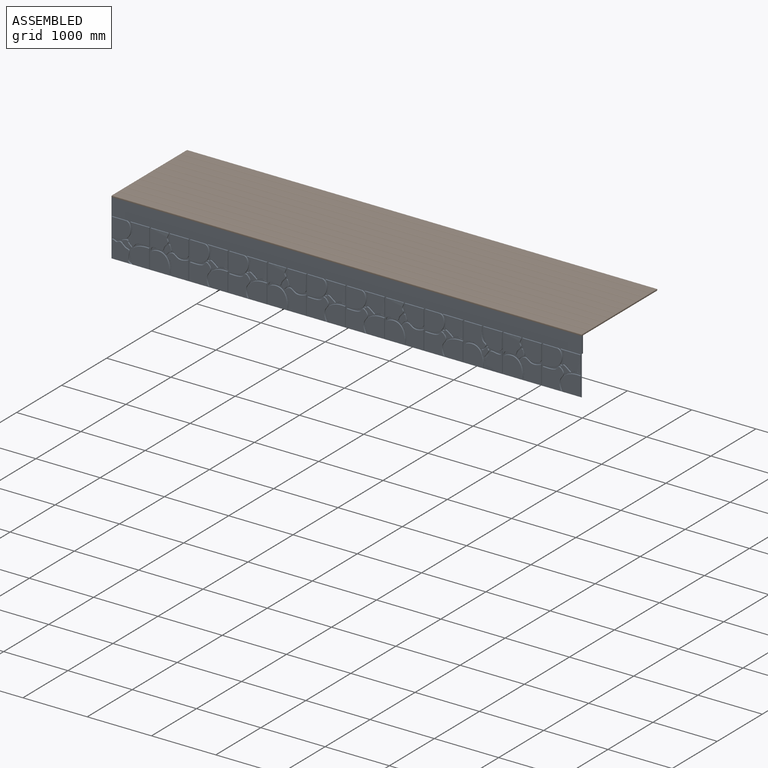
[diagram: assembled view]
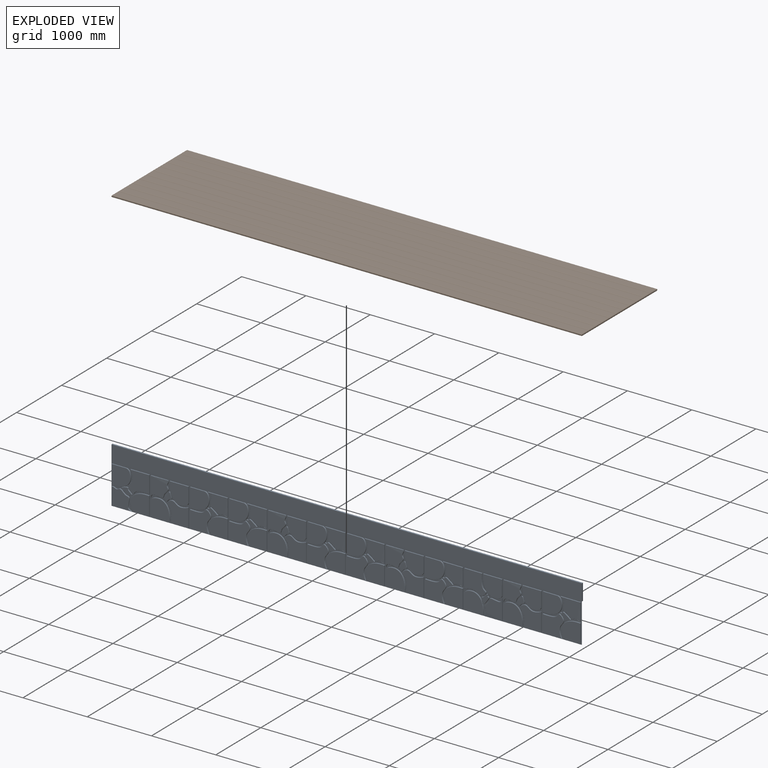
[diagram: exploded view]
GUIDED TOUR — MATED ASSEMBLY WITH SUBASSEMBLIES (Onshape document 3dcd6eb83dcc1490669a34c6, AutoMate assembly 3dcd6eb83dcc1490669a34c6_368724a0698504fedb2d7446_d10040594b9659fdce17934c_default)

This assembly has 24 component occurrences arranged in 2 top-level units: 0 individual components plus 2 subassemblies (S0, S1). The tour has two levels: first the top level, where each subassembly is treated as one rigid unit; then each subassembly is toured internally in its own section (nesting deeper than one subassembly level is flattened into its subassembly's section).

Components are labeled P0..P23 across the whole record; subassembly units are labeled S0..S1. A mate is a constraint between two units; its type names the relative motion it leaves free:
  PLANAR — leaves sliding in the plane through the listed point (normal = the listed direction) and rotation about that normal free.
Axis/direction vectors are unit vectors and 'through' points are millimeter coordinates, both in the assembly's world frame.

TOP-LEVEL MATES (between units; each subassembly's internal mates are listed in its own section)
  1. PLANAR "Planar 1": S1 <-> S0, direction (0.000, 0.000, -1.000) through (-256.21, -809.91, 1233.63) mm

TOP-LEVEL ASSEMBLY ORDER
  1. S1 — the base component [order verified]
  2. S0 [order verified]
Order-tag legend:
  [order verified] — this step's position reverses a verified removal order: the component was checked to insert without passing through the ones already placed.

Of the 24 component occurrences, 12 carry the full construction recipe — the FeatureScript program that regenerates the part's solid from scratch; the rest are supplied as boundary geometry only. Each toured unit is shown spotlighted twice — assembled, then exploded with a leader line back to its socket (green = recipe-attached component, orange = geometry-only, blue = subassembly unit; the rest desaturated gray).
NOTE — document 2 of 2 of this assembly tour. The two overview renders and the header above are repeated from document 1; the component sections below continue where the previous document stopped.
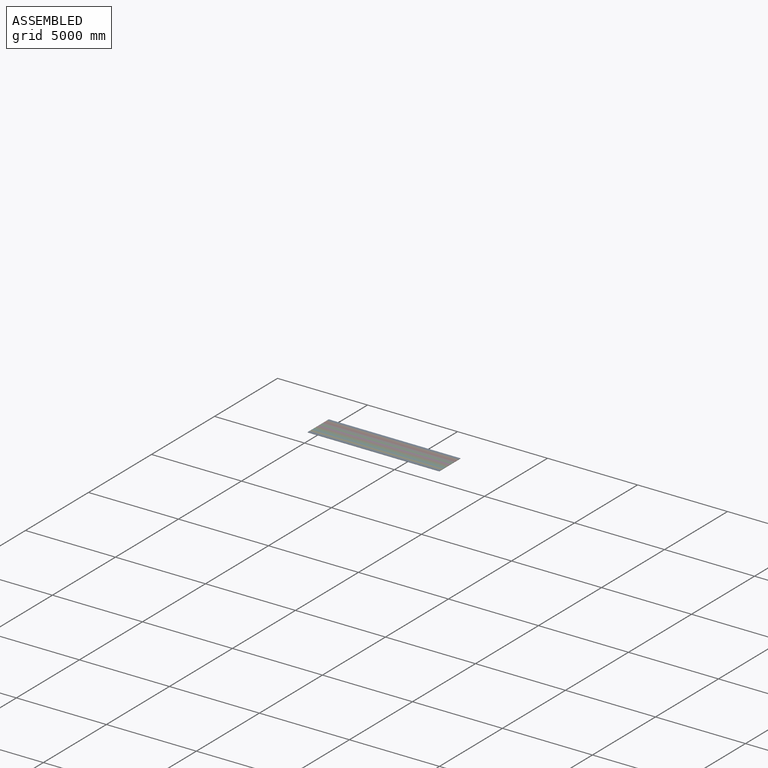
[diagram: subassembly S1 — assembled view]
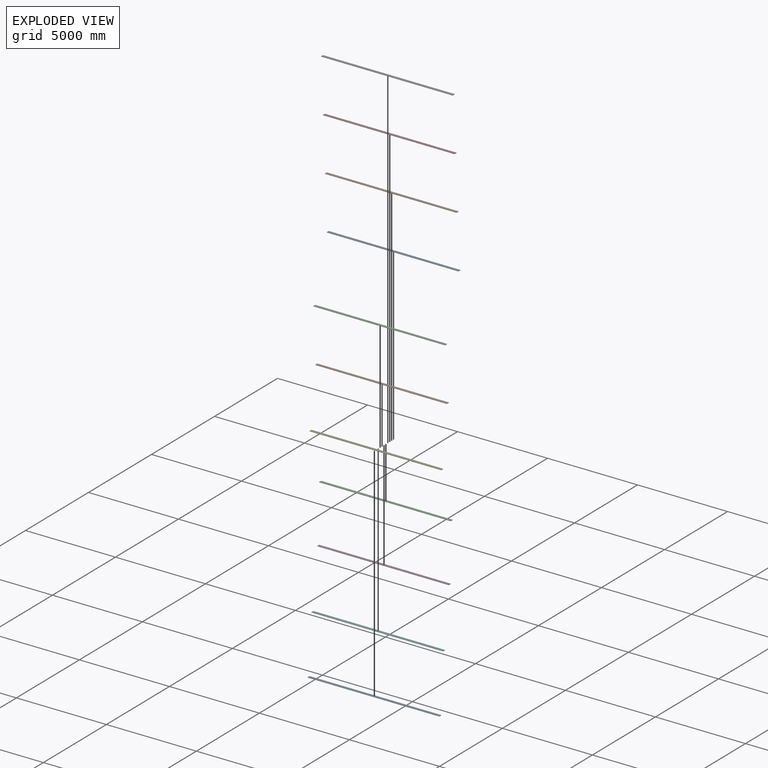
[diagram: subassembly S1 — exploded view]
SUBASSEMBLY S1 TOUR — 11 components, shown here in isolation at its own camera.

INTERNAL MATES
  1. PLANAR "Planar 11": P10 <-> P11, direction (0.000, 0.000, -1.000) through (-256.29, -505.11, 1233.63) mm
  2. PLANAR "Planar 8": P3 <-> P5, direction (0.000, 0.000, -1.000) through (-256.41, -47.91, 1233.63) mm
  3. PLANAR "Planar 10": P11 <-> P22, direction (0.000, 0.000, -1.000) through (-256.33, -352.71, 1233.63) mm
  4. PLANAR "Planar 9": P22 <-> P3, direction (0.000, 0.000, -1.000) through (-256.37, -200.31, 1233.63) mm
  5. PLANAR "Planar 6": P4 <-> P14, direction (0.000, 0.000, -1.000) through (-256.48, 256.89, 1233.63) mm
  6. PLANAR "Planar 12": P2 <-> P10, direction (0.000, 0.000, -1.000) through (-256.25, -657.51, 1233.63) mm
  7. PLANAR "Planar 4": P15 <-> P21, direction (0.000, 0.000, -1.000) through (-256.56, 561.69, 1233.63) mm
  8. PLANAR "Planar 3": P21 <-> P16, direction (0.000, 0.000, -1.000) through (-256.60, 714.09, 1233.63) mm
  9. PLANAR "Planar 5": P14 <-> P15, direction (0.000, 0.000, -1.000) through (-256.52, 409.29, 1233.63) mm
  10. PLANAR "Planar 7": P5 <-> P4, direction (0.000, 0.000, -1.000) through (-256.44, 104.49, 1233.63) mm
  11. PLANAR "Planar 6": P5 <-> P3, direction (0.000, 0.000, -1.000) through (-256.41, -47.91, 1233.63) mm
  12. PLANAR "Planar 8": P14 <-> P4, direction (0.000, 0.000, -1.000) through (-256.48, 256.89, 1233.63) mm
  13. PLANAR "Planar 3": P11 <-> P10, direction (0.000, 0.000, -1.000) through (-256.29, -505.11, 1233.63) mm
  14. PLANAR "Planar 4": P22 <-> P11, direction (0.000, 0.000, -1.000) through (-256.33, -352.71, 1233.63) mm
  15. PLANAR "Planar 5": P3 <-> P22, direction (0.000, 0.000, -1.000) through (-256.37, -200.31, 1233.63) mm
  16. PLANAR "Planar 6": P4 <-> P14, direction (0.000, 0.000, -1.000) through (-256.48, 256.89, 1233.63) mm
  17. PLANAR "Planar 5": P14 <-> P15, direction (0.000, 0.000, -1.000) through (-256.52, 409.29, 1233.63) mm
  18. PLANAR "Planar 9": P15 <-> P14, direction (0.000, 0.000, -1.000) through (-256.52, 409.29, 1233.63) mm
  19. PLANAR "Planar 9": P22 <-> P3, direction (0.000, 0.000, -1.000) through (-256.37, -200.31, 1233.63) mm
  20. PLANAR "Planar 2": P10 <-> P2, direction (0.000, 0.000, -1.000) through (-256.25, -657.51, 1233.63) mm
  21. PLANAR "Planar 11": P10 <-> P11, direction (0.000, 0.000, -1.000) through (-256.29, -505.11, 1233.63) mm
  22. PLANAR "Planar 11": P16 <-> P21, direction (0.000, 0.000, -1.000) through (-256.60, 714.09, 1233.63) mm
  23. PLANAR "Planar 3": P21 <-> P16, direction (0.000, 0.000, -1.000) through (-256.60, 714.09, 1233.63) mm
  24. PLANAR "Planar 7": P4 <-> P5, direction (0.000, 0.000, -1.000) through (-256.44, 104.49, 1233.63) mm
  25. PLANAR "Planar 4": P15 <-> P21, direction (0.000, 0.000, -1.000) through (-256.56, 561.69, 1233.63) mm
  26. PLANAR "Planar 12": P2 <-> P10, direction (0.000, 0.000, -1.000) through (-256.25, -657.51, 1233.63) mm
  27. PLANAR "Planar 7": P5 <-> P4, direction (0.000, 0.000, -1.000) through (-256.44, 104.49, 1233.63) mm
  28. PLANAR "Planar 8": P3 <-> P5, direction (0.000, 0.000, -1.000) through (-256.41, -47.91, 1233.63) mm
  29. PLANAR "Planar 10": P11 <-> P22, direction (0.000, 0.000, -1.000) through (-256.33, -352.71, 1233.63) mm
  30. PLANAR "Planar 10": P21 <-> P15, direction (0.000, 0.000, -1.000) through (-256.56, 561.69, 1233.63) mm

ASSEMBLY ORDER (within the subassembly)
  1. P10 — the base component [order verified]
  2. P4 [order verified]
  3. P5 [order verified]
  4. P3 [order verified]
  5. P11 [order verified]
  6. P22 [order verified]
  7. P2 [order verified]
  8. P16 [order verified]
  9. P21 [order verified]
  10. P15 [order verified]
  11. P14 [order verified]
Order-tag legend:
  [order verified] — this step's position reverses a verified removal order: the component was checked to insert without passing through the ones already placed.
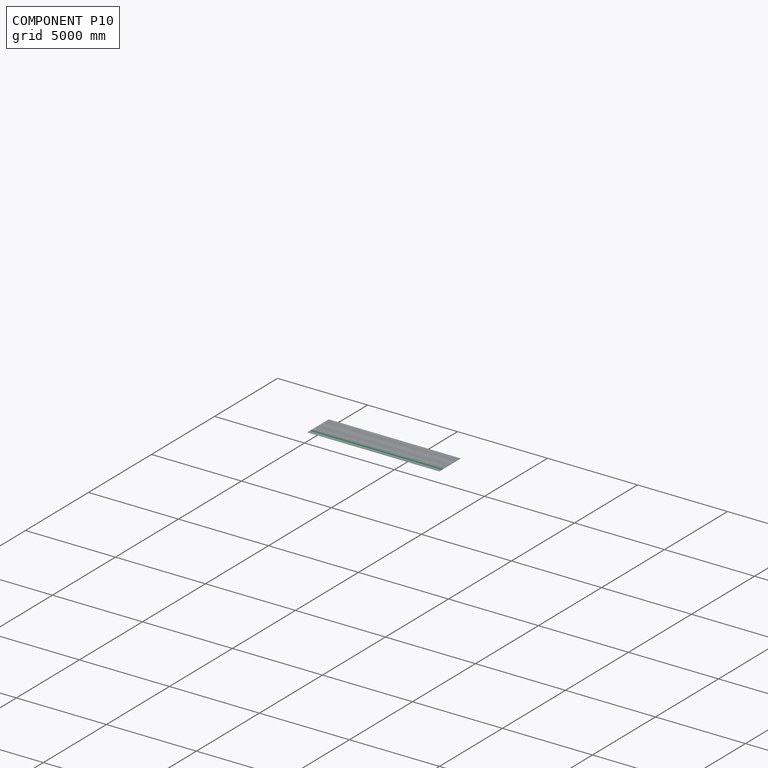
[diagram: component P10 — assembled]
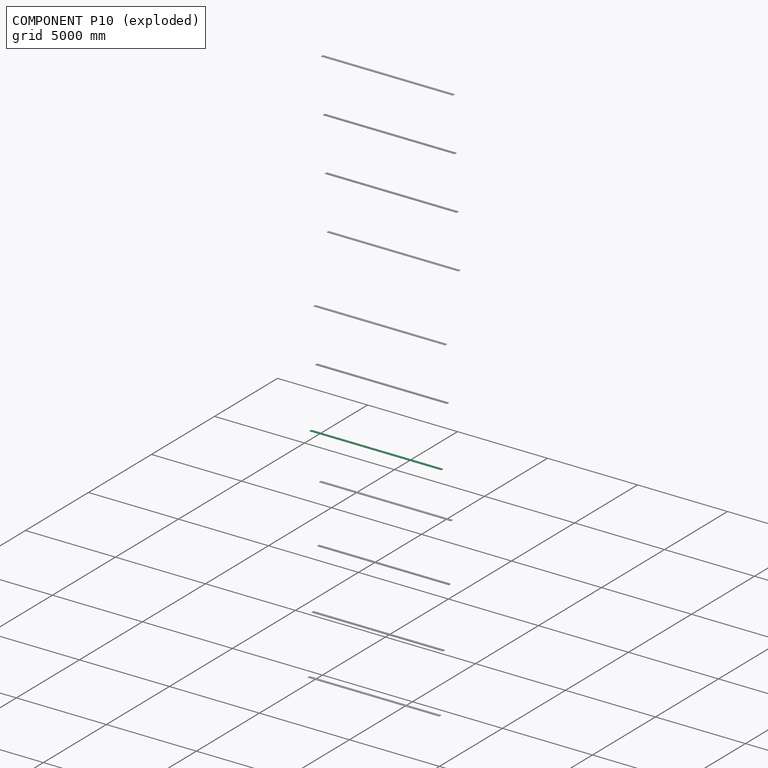
[diagram: component P10 — exploded]
COMPONENT P10 — same part as P2 (CADFS 00405681); its construction recipe is shown at P2.
Held by: PLANAR mate "Planar 11" to P11; PLANAR mate "Planar 12" to P2; PLANAR mate "Planar 3" to P11; PLANAR mate "Planar 2" to P2; PLANAR mate "Planar 11" to P11; PLANAR mate "Planar 12" to P2.
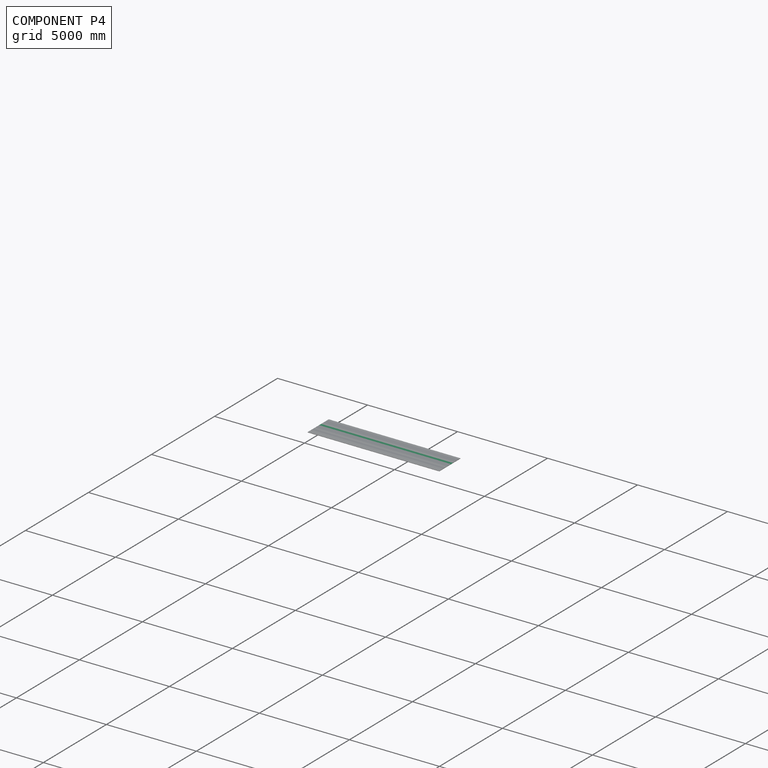
[diagram: component P4 — assembled]
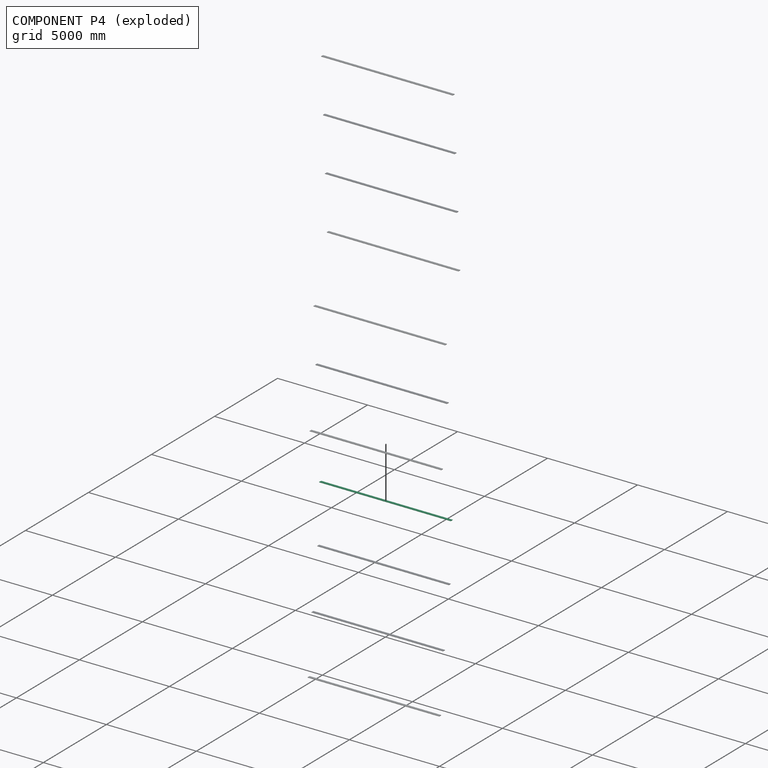
[diagram: component P4 — exploded]
COMPONENT P4 — same part as P2 (CADFS 00405681); its construction recipe is shown at P2.
Held by: PLANAR mate "Planar 6" to P14; PLANAR mate "Planar 7" to P5; PLANAR mate "Planar 8" to P14; PLANAR mate "Planar 6" to P14; PLANAR mate "Planar 7" to P5; PLANAR mate "Planar 7" to P5.
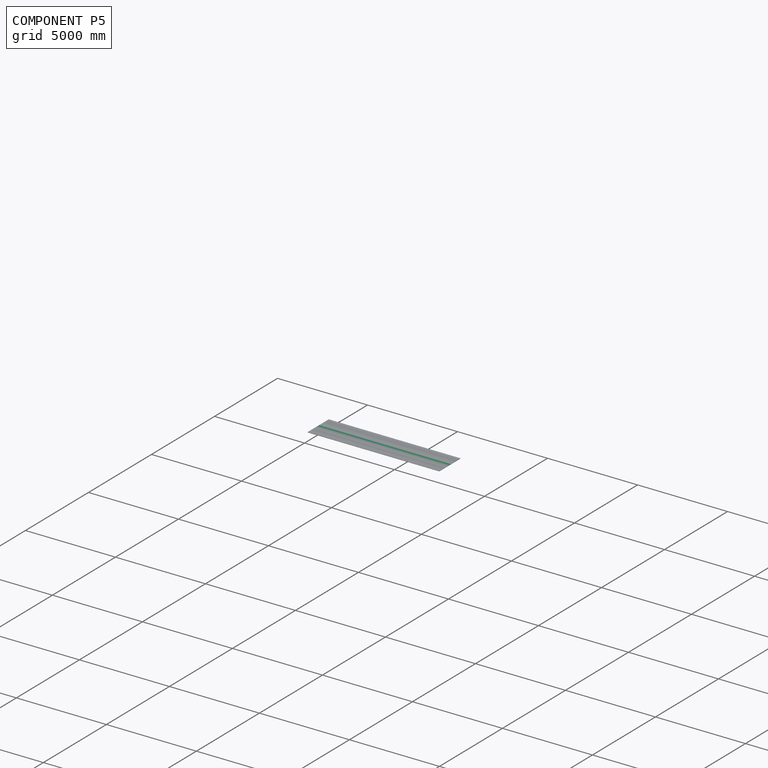
[diagram: component P5 — assembled]
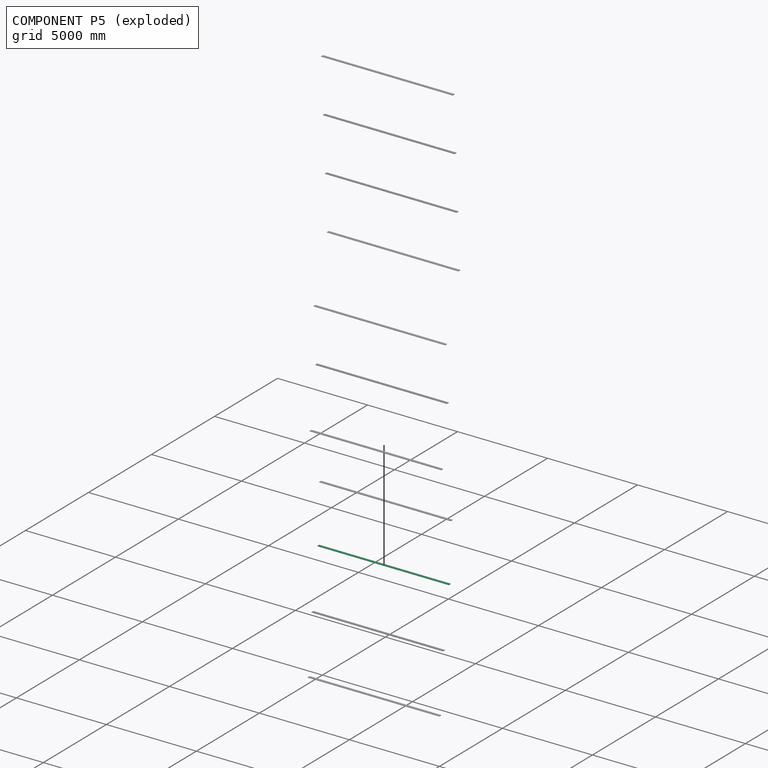
[diagram: component P5 — exploded]
COMPONENT P5 — same part as P2 (CADFS 00405681); its construction recipe is shown at P2.
Held by: PLANAR mate "Planar 8" to P3; PLANAR mate "Planar 7" to P4; PLANAR mate "Planar 6" to P3; PLANAR mate "Planar 7" to P4; PLANAR mate "Planar 7" to P4; PLANAR mate "Planar 8" to P3.
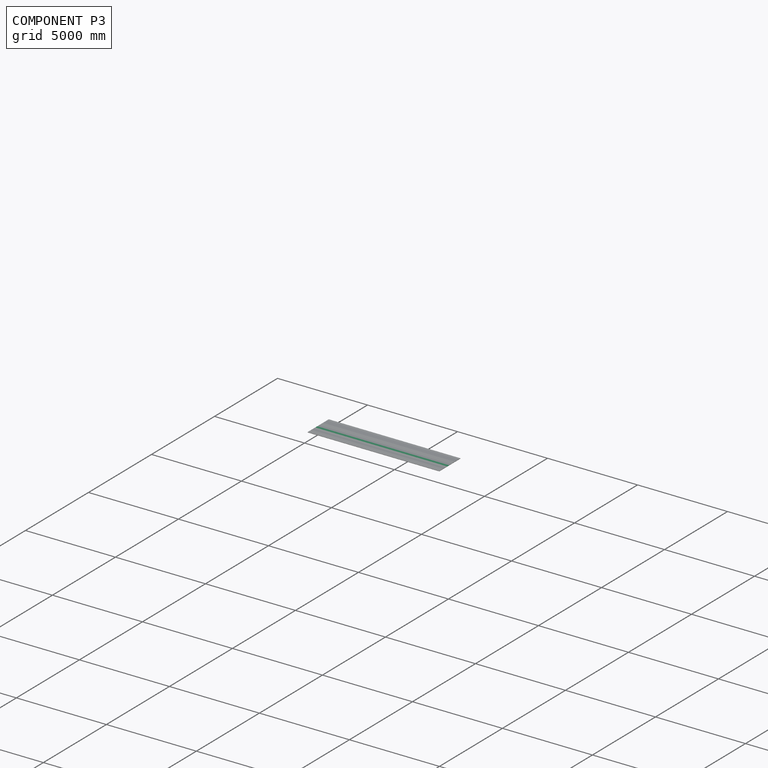
[diagram: component P3 — assembled]
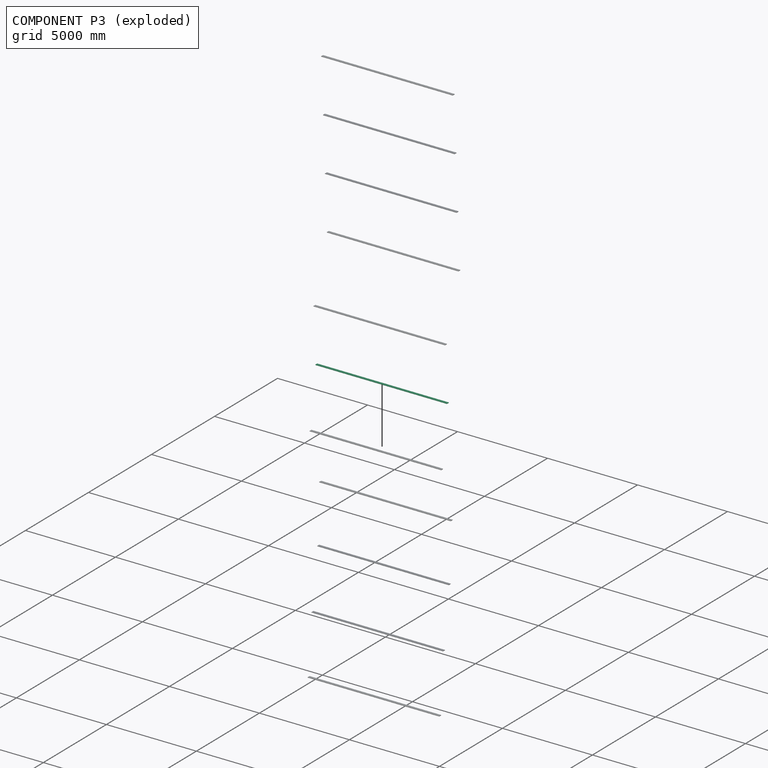
[diagram: component P3 — exploded]
COMPONENT P3 — same part as P2 (CADFS 00405681); its construction recipe is shown at P2.
Held by: PLANAR mate "Planar 8" to P5; PLANAR mate "Planar 9" to P22; PLANAR mate "Planar 6" to P5; PLANAR mate "Planar 5" to P22; PLANAR mate "Planar 9" to P22; PLANAR mate "Planar 8" to P5.
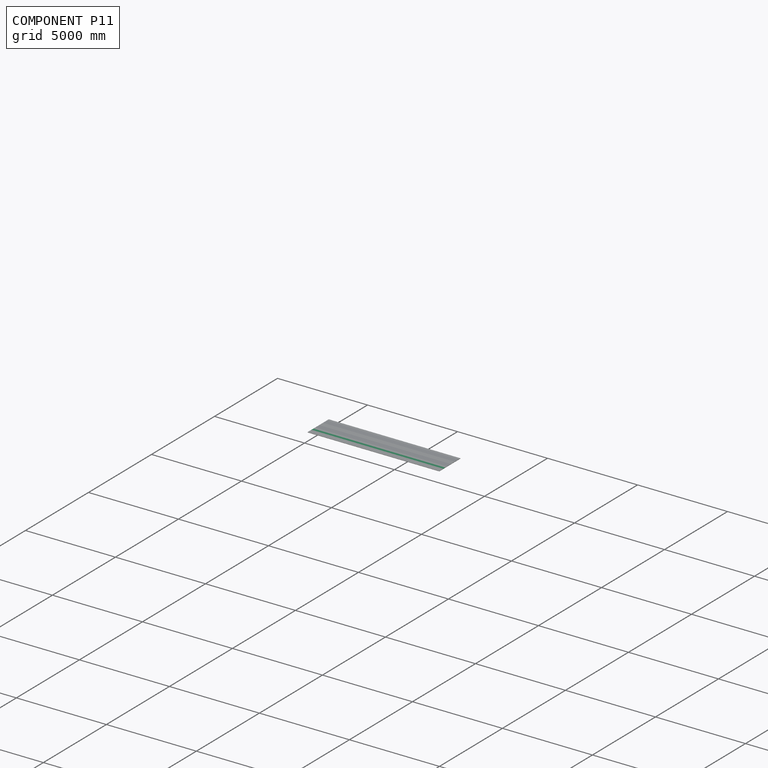
[diagram: component P11 — assembled]
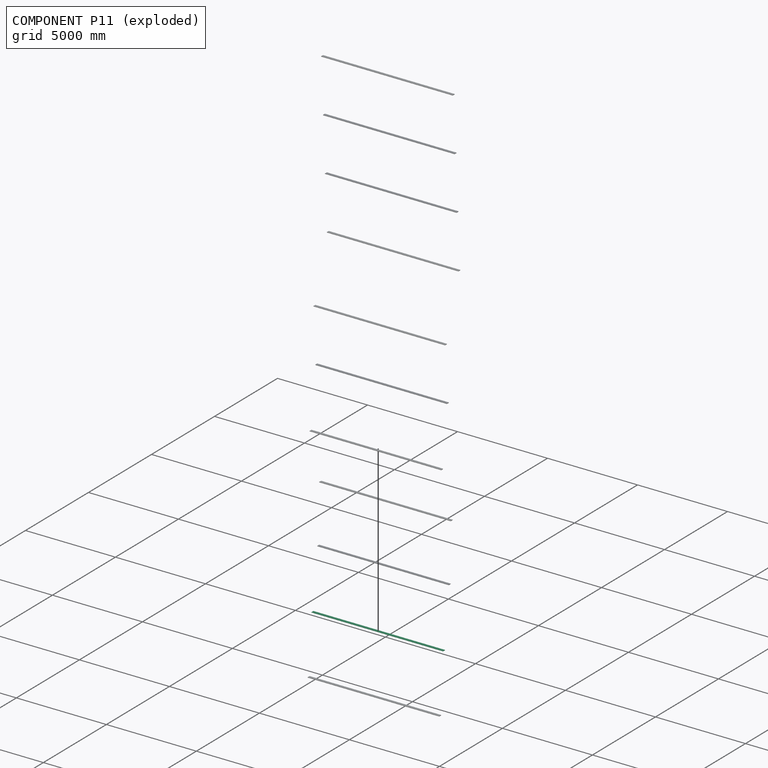
[diagram: component P11 — exploded]
COMPONENT P11 — same part as P2 (CADFS 00405681); its construction recipe is shown at P2.
Held by: PLANAR mate "Planar 11" to P10; PLANAR mate "Planar 10" to P22; PLANAR mate "Planar 3" to P10; PLANAR mate "Planar 4" to P22; PLANAR mate "Planar 11" to P10; PLANAR mate "Planar 10" to P22.
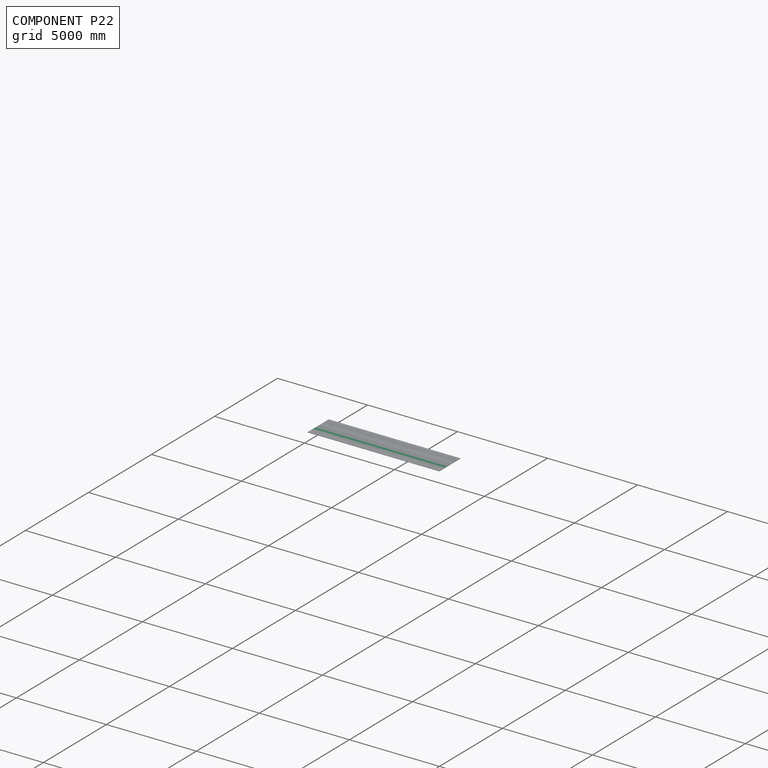
[diagram: component P22 — assembled]
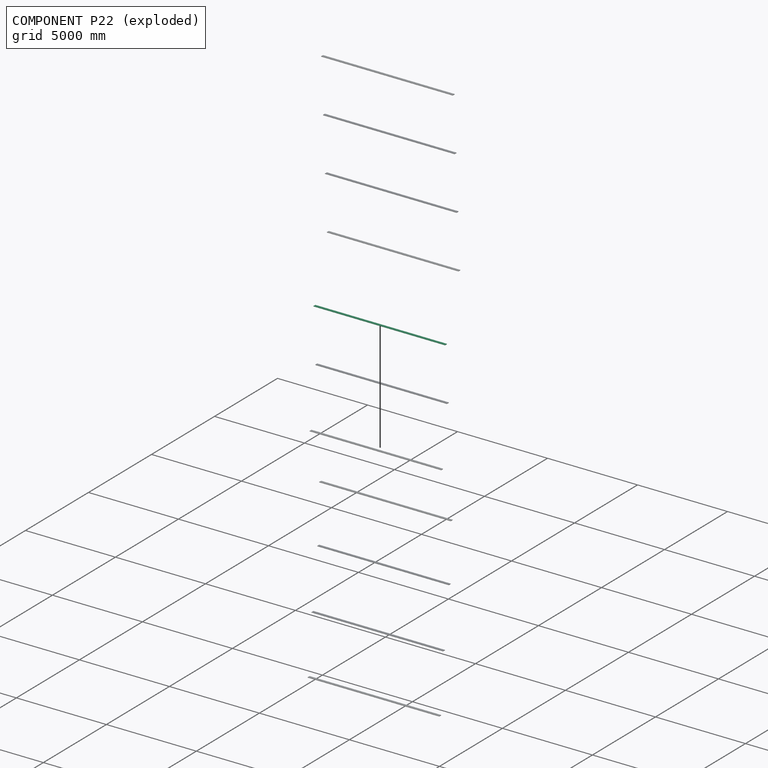
[diagram: component P22 — exploded]
COMPONENT P22 — same part as P2 (CADFS 00405681); its construction recipe is shown at P2.
Held by: PLANAR mate "Planar 10" to P11; PLANAR mate "Planar 9" to P3; PLANAR mate "Planar 4" to P11; PLANAR mate "Planar 5" to P3; PLANAR mate "Planar 9" to P3; PLANAR mate "Planar 10" to P11.
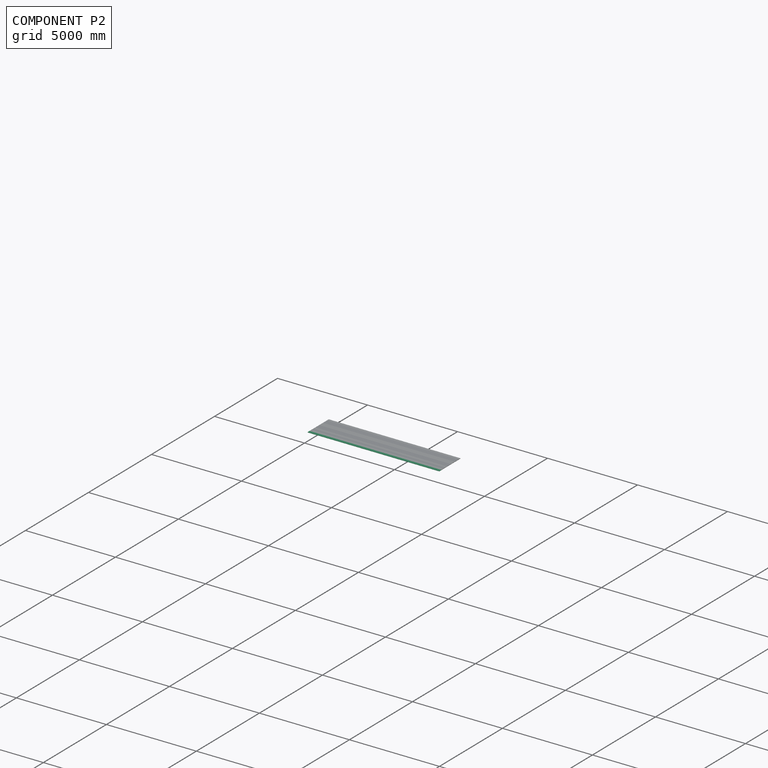
[diagram: component P2 — assembled]
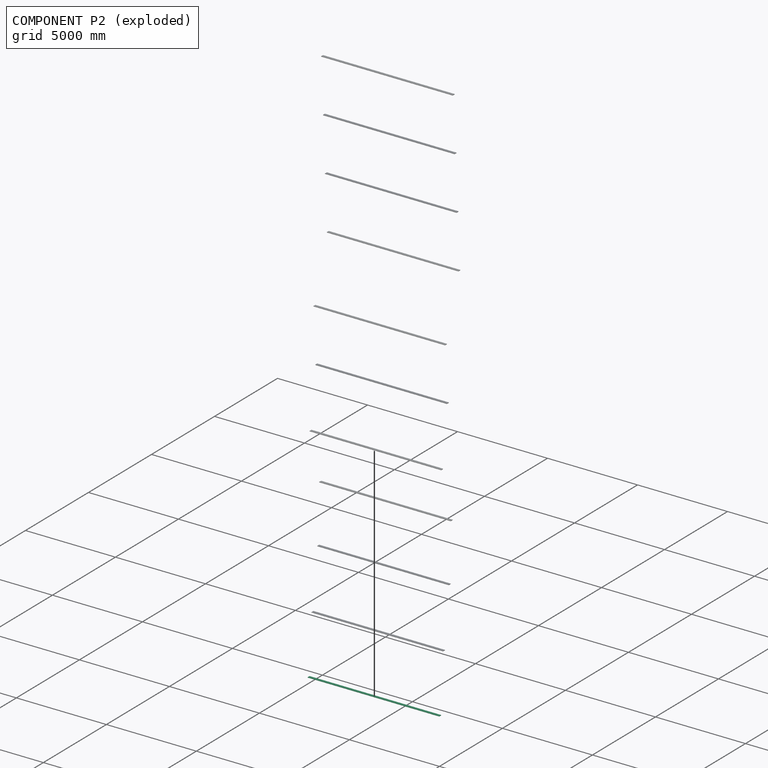
[diagram: component P2 — exploded]
COMPONENT P2 — recipe-attached (CADFS 00405681, mesh-verified: the recipe's output STEP matches this component's geometry to below the mesh-comparison resolution (tessellation chordal tolerance ~11 mm)).
Held by: PLANAR mate "Planar 12" to P10; PLANAR mate "Planar 2" to P10; PLANAR mate "Planar 12" to P10.
Construction recipe (FeatureScript — the CAD program that rebuilds this solid; sketch coordinates are in the units given by the * unit suffixes, e.g. mm):

FeatureScript 1511;
import(path : "onshape/std/geometry.fs", version : "1511.0");
import(path : "onshape/std/common.fs", version : "1511.0");
const mm = millimeter;
const VERTEX = EntityType.VERTEX;
const EDGE = EntityType.EDGE;
const FACE = EntityType.FACE;
const BODY = EntityType.BODY;
function v(x, y){return vector(x, y);}
function OD(order){return orderDisambiguation(order);}
function OSD(set){return originalSetDisambiguation(set);}
function TD(topology){return topologyDisambiguation(topology);}
function TDD(query){return trueDependencyDisambiguation(query);}
function sQuery(a, b, c) {return sketchEntityQuery(a, b, c);}

annotation { "Feature Type Name" : "Feature", "Feature Type Description" : "" }
export const myFeature = defineFeature(function(context is Context, id is Id, definition is map)
    precondition{}
    {
        {
            var Q0;
            Q0=qCreatedBy(makeId("Top.planeOp"),FACE);
            var sketch = newSketch(context, id + "F0", { "sketchPlane" : qUnion([Q0])});
            skLineSegment(sketch, "E0.bottom", {"start": v(3657.6, -76.2) * mm, "end": v(-3657.6, -76.2) * mm});
            skLineSegment(sketch, "E0.top", {"start": v(3657.6, 76.2) * mm, "end": v(-3657.6, 76.2) * mm});
            skLineSegment(sketch, "E0.left", {"start": v(3657.6, -76.2) * mm, "end": v(3657.6, 76.2) * mm});
            skLineSegment(sketch, "E0.right", {"start": v(-3657.6, -76.2) * mm, "end": v(-3657.6, 76.2) * mm});
            skPoint(sketch, "E0.middle", {"position": v(0, 0) * mm});
            skSolve(sketch);
        }
        {
            var Q0;
            Q0=makeQuery(id+"F0.imprint","IMPRINT",FACE,{"disambiguationData":[TD([[makeQuery(id+"F0.imprint","IMPRINT",EDGE,{"derivedFrom":sQuery(id+"F0.wireOp",EDGE,"E0.bottom")}),-1.0]])]});
            extrude(context, id + "F1", {"entities" : qUnion([Q0]), "depth" : 25.4 * mm});
        }
        {
            var Q0;
            Q0=makeQuery(id+"F1.opExtrude","CAP_FACE",FACE,{"disambiguationData":[OSD([sQuery(id+"F0.wireOp",EDGE,"E0.bottom"),sQuery(id+"F0.wireOp",EDGE,"E0.top"),sQuery(id+"F0.wireOp",EDGE,"E0.left"),sQuery(id+"F0.wireOp",EDGE,"E0.right")])],"isStart":false});
            fillet(context, id + "F2", {"entities" : qUnion([Q0]), "radius" : 12.7 * mm, "tangentPropagation" : true, "allowEdgeOverflow" : false});
        }
    });
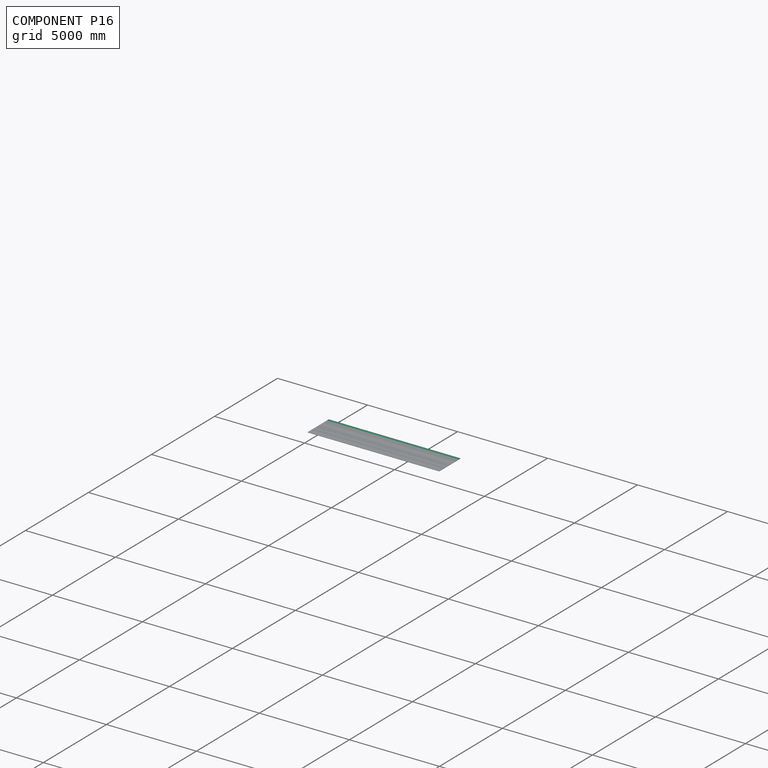
[diagram: component P16 — assembled]
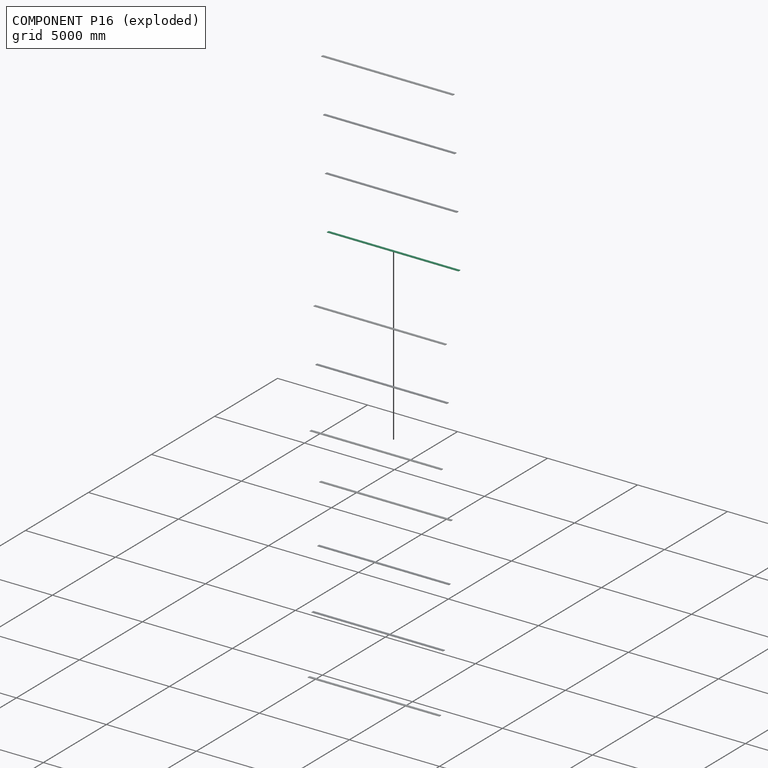
[diagram: component P16 — exploded]
COMPONENT P16 — same part as P2 (CADFS 00405681); its construction recipe is shown at P2.
Held by: PLANAR mate "Planar 3" to P21; PLANAR mate "Planar 11" to P21; PLANAR mate "Planar 3" to P21.
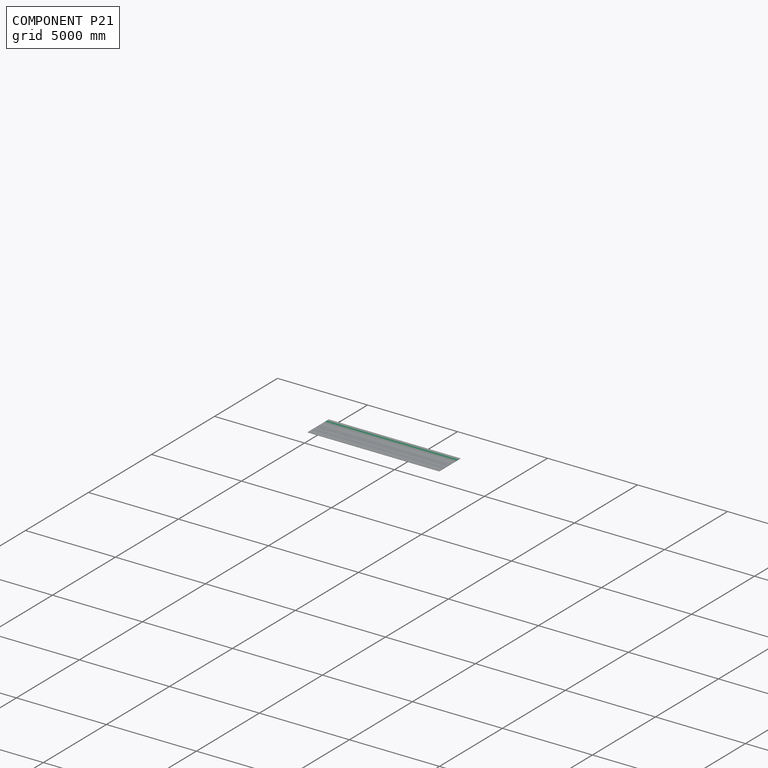
[diagram: component P21 — assembled]
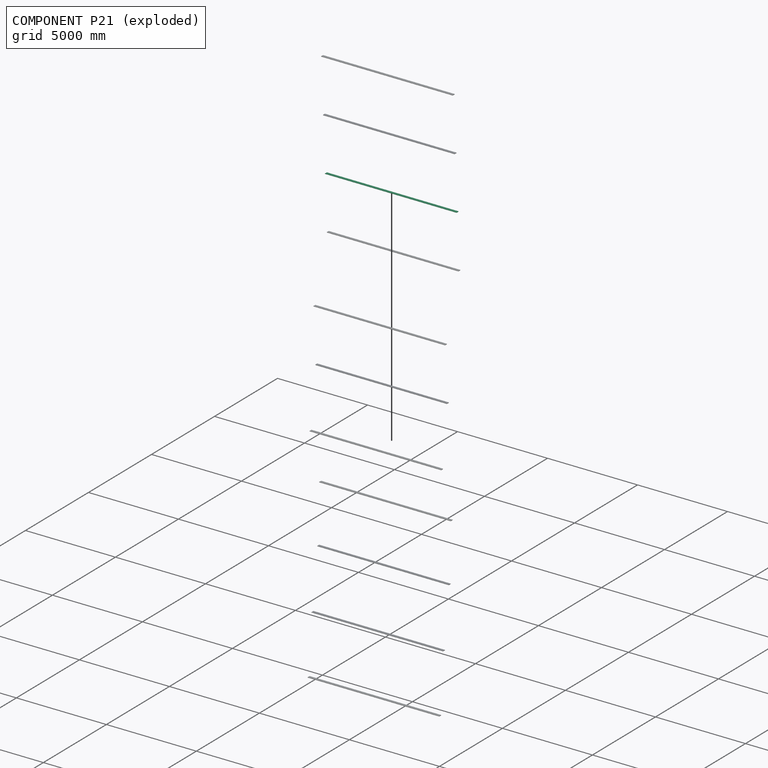
[diagram: component P21 — exploded]
COMPONENT P21 — same part as P2 (CADFS 00405681); its construction recipe is shown at P2.
Held by: PLANAR mate "Planar 4" to P15; PLANAR mate "Planar 3" to P16; PLANAR mate "Planar 11" to P16; PLANAR mate "Planar 3" to P16; PLANAR mate "Planar 4" to P15; PLANAR mate "Planar 10" to P15.
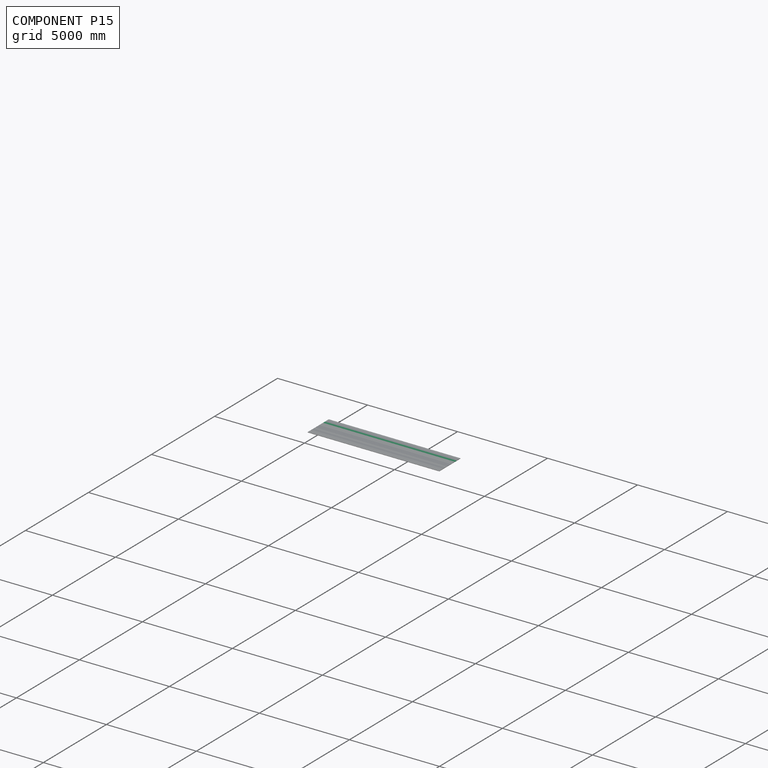
[diagram: component P15 — assembled]
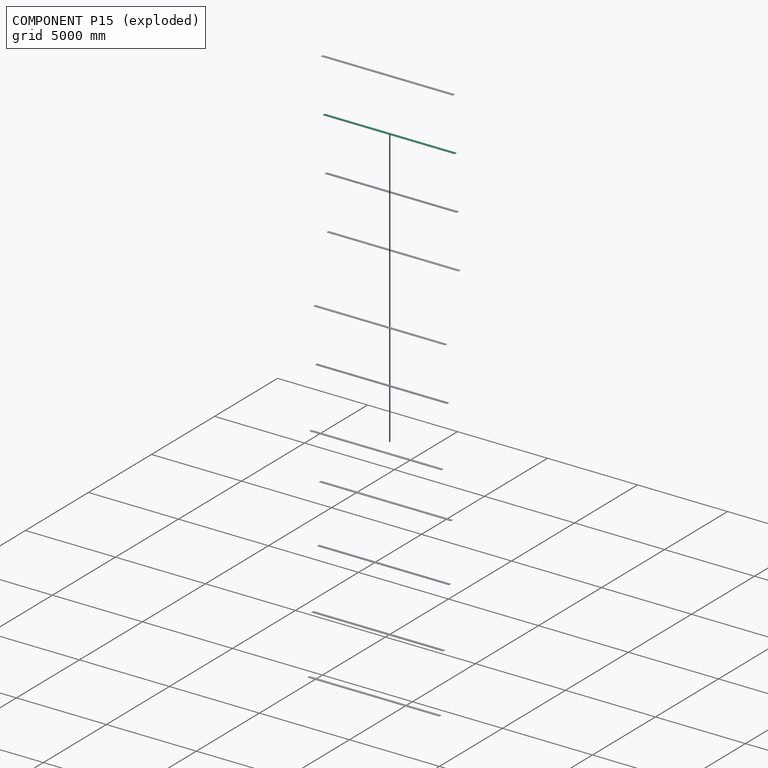
[diagram: component P15 — exploded]
COMPONENT P15 — same part as P2 (CADFS 00405681); its construction recipe is shown at P2.
Held by: PLANAR mate "Planar 4" to P21; PLANAR mate "Planar 5" to P14; PLANAR mate "Planar 5" to P14; PLANAR mate "Planar 9" to P14; PLANAR mate "Planar 4" to P21; PLANAR mate "Planar 10" to P21.
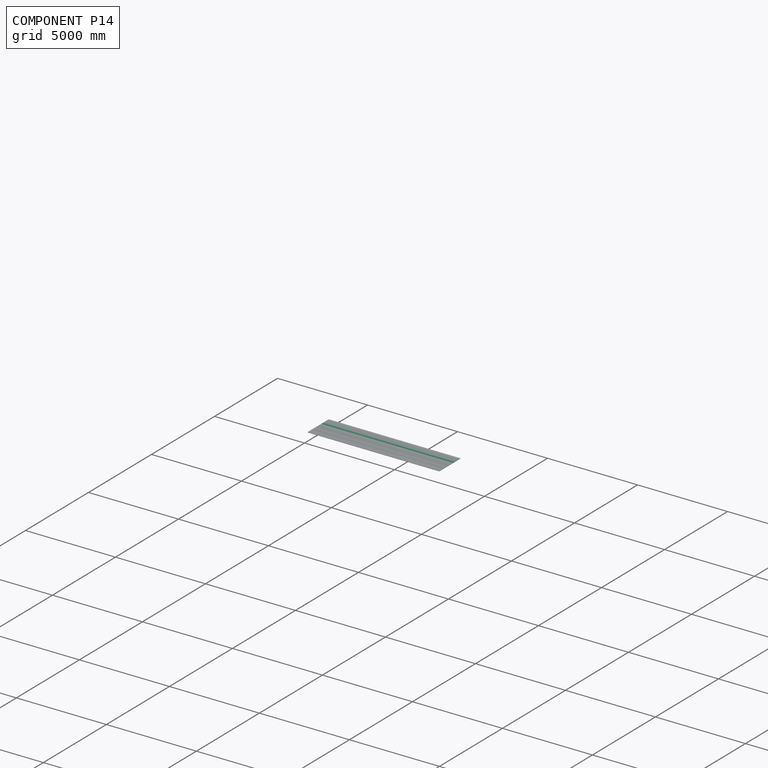
[diagram: component P14 — assembled]
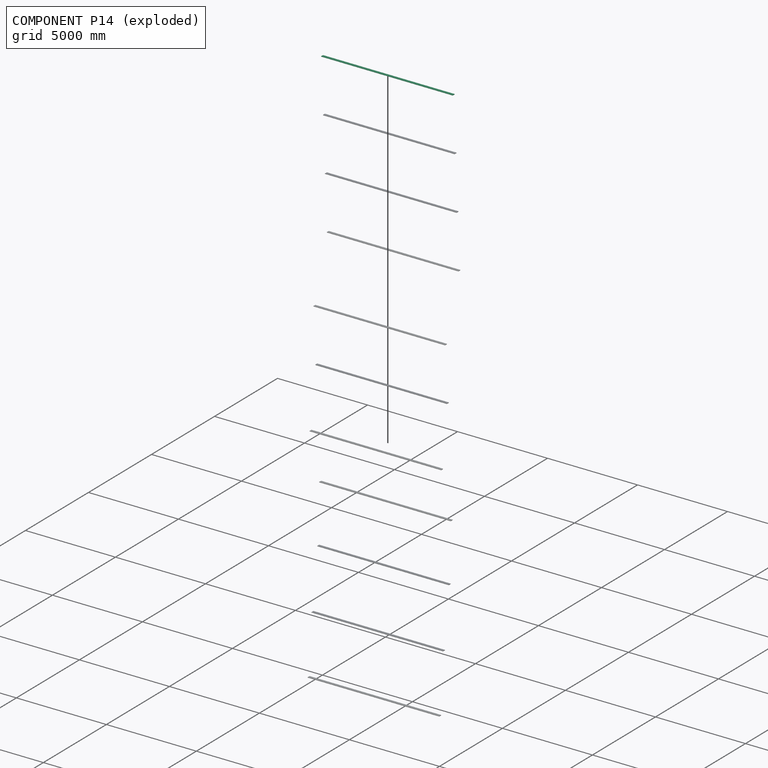
[diagram: component P14 — exploded]
COMPONENT P14 — same part as P2 (CADFS 00405681); its construction recipe is shown at P2.
Held by: PLANAR mate "Planar 6" to P4; PLANAR mate "Planar 5" to P15; PLANAR mate "Planar 8" to P4; PLANAR mate "Planar 6" to P4; PLANAR mate "Planar 5" to P15; PLANAR mate "Planar 9" to P15.
PROVENANCE & LICENSES
Assembly (occurrences, transforms, mates, per-part STEP geometry): AutoMate dataset, Zenodo record 7776208, CC0.
Construction recipes: CADFS (HuggingFace VladPyatov/CADFS, CC-BY-4.0, layered over the ABC dataset), FeatureScript reconstruction programs keyed by ABC model id.
Join: ABC meta listings map ABC model id -> Onshape documentId; within a shared document, parts are matched by geometric signature (bounding-box dims + volume at 0.1% relative tolerance, exact B-rep face/solid counts).
Verification: 12 of this assembly's 24 components carry a recipe attachment, and every attachment is mesh-verified: the CADFS STEP and the AutoMate member STEP were compared as meshes in their shared local frame (symmetric sampled-point-to-mesh distance); worst across the 12 attachments: below the mesh-comparison resolution (tessellation chordal tolerance ~11 mm) on a 7320 mm part.
Renders: orthographic iso camera (az 35 / el 25); the floor grid conveys scale (grid pitch printed in each image; no ruler). In the exploded view each component is displaced by its stored offset vector: the offsets alone carry the explosion direction (mate normal/axis signs are not orientation cues and do not encode it), and separation distances are assigned per mate-chain, not proportionally to assembly-order depth.
